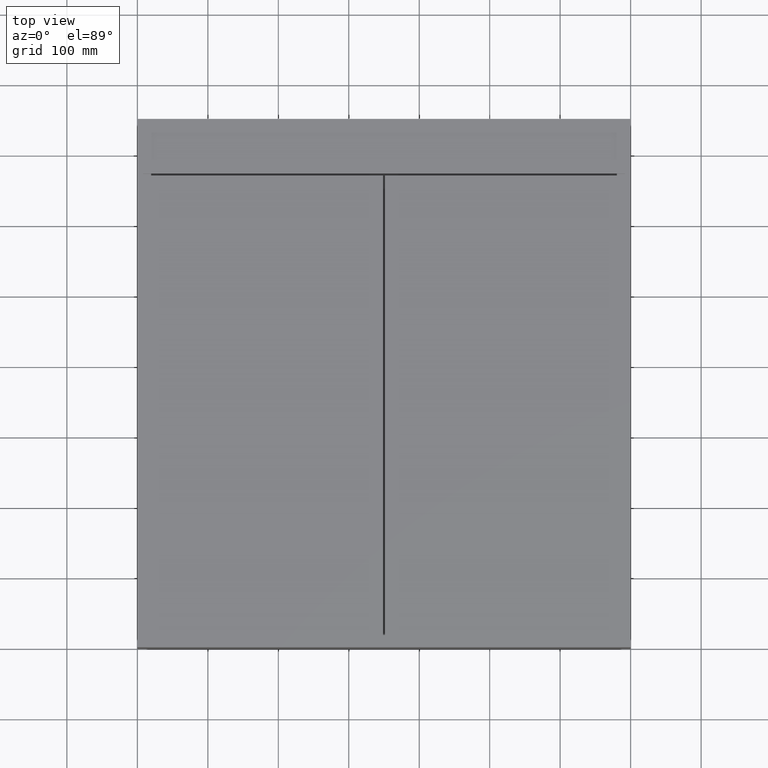
[diagram: clean part render]
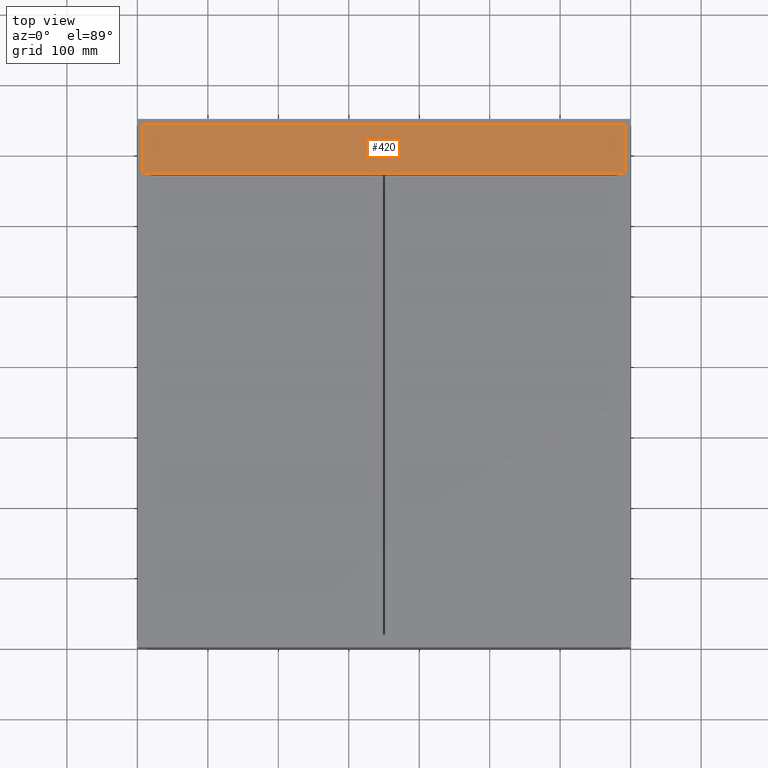
[diagram: same view with one face highlighted and labeled with its STEP entity id]
A machine part, top view. The second image highlights one B-rep face of the part: STEP entity #420.
In plain terms, the highlighted planar face has unit normal (-0, 0, -1).
Its self-contained STEP definition (entity closure, byte-faithful):
#420 = ADVANCED_FACE ( 'NONE', ( #770 ), #4380, .F. ) ;
#487 = VERTEX_POINT ( 'NONE', #10830 ) ;
#637 = EDGE_LOOP ( 'NONE', ( #5780, #8802, #2681, #4771 ) ) ;
#770 = FACE_OUTER_BOUND ( 'NONE', #637, .T. ) ;
#824 = CARTESIAN_POINT ( 'NONE',  ( 692.0000000000000000, 742.0000000000000000, -0.9999999999999974465 ) ) ;
#951 = DIRECTION ( 'NONE',  ( 0.0000000000000000000, -1.000000000000000000, -1.239086427002825381E-16 ) ) ;
#1298 = VECTOR ( 'NONE', #2766, 1000.000000000000000 ) ;
#1604 = VECTOR ( 'NONE', #10904, 1000.000000000000000 ) ;
#2001 = CARTESIAN_POINT ( 'NONE',  ( 8.000000000000007105, 671.9999000000001388, -0.9999999999999280575 ) ) ;
#2681 = ORIENTED_EDGE ( 'NONE', *, *, #6085, .T. ) ;
#2766 = DIRECTION ( 'NONE',  ( -1.000000000000000000, 5.777789833161705849E-34, 1.153591111524576471E-16 ) ) ;
#2873 = DIRECTION ( 'NONE',  ( 0.0000000000000000000, -1.000000000000000000, -1.239086427002825381E-16 ) ) ;
#2941 = VECTOR ( 'NONE', #951, 1000.000000000000000 ) ;
#3496 = DIRECTION ( 'NONE',  ( 0.0000000000000000000, 1.000000000000000000, 1.239086427002825381E-16 ) ) ;
#3680 = LINE ( 'NONE', #7305, #1604 ) ;
#3689 = VERTEX_POINT ( 'NONE', #824 ) ;
#3816 = VERTEX_POINT ( 'NONE', #2001 ) ;
#4170 = AXIS2_PLACEMENT_3D ( 'NONE', #8008, #11599, #3496 ) ;
#4380 = PLANE ( 'NONE',  #4170 ) ;
#4771 = ORIENTED_EDGE ( 'NONE', *, *, #8525, .F. ) ;
#5460 = LINE ( 'NONE', #9069, #2941 ) ;
#5567 = EDGE_CURVE ( 'NONE', #3689, #7563, #5460, .T. ) ;
#5780 = ORIENTED_EDGE ( 'NONE', *, *, #5567, .F. ) ;
#6085 = EDGE_CURVE ( 'NONE', #487, #3816, #7394, .T. ) ;
#7276 = LINE ( 'NONE', #10877, #1298 ) ;
#7305 = CARTESIAN_POINT ( 'NONE',  ( 771.6493188923168418, 742.0000000000000000, -1.000000000000007772 ) ) ;
#7394 = LINE ( 'NONE', #10989, #10514 ) ;
#7563 = VERTEX_POINT ( 'NONE', #7799 ) ;
#7799 = CARTESIAN_POINT ( 'NONE',  ( 692.0000000000000000, 671.9999000000001388, -1.000000000000007772 ) ) ;
#8008 = CARTESIAN_POINT ( 'NONE',  ( 771.6493188923168418, 742.0000000000000000, -1.000000000000007772 ) ) ;
#8525 = EDGE_CURVE ( 'NONE', #7563, #3816, #7276, .T. ) ;
#8802 = ORIENTED_EDGE ( 'NONE', *, *, #10919, .T. ) ;
#9069 = CARTESIAN_POINT ( 'NONE',  ( 692.0000000000000000, 742.0000000000000000, -0.9999999999999974465 ) ) ;
#10514 = VECTOR ( 'NONE', #2873, 1000.000000000000000 ) ;
#10830 = CARTESIAN_POINT ( 'NONE',  ( 8.000000000000007105, 742.0000000000000000, -0.9999999999999210631 ) ) ;
#10877 = CARTESIAN_POINT ( 'NONE',  ( 771.6493188923168418, 671.9999000000001388, -1.000000000000018208 ) ) ;
#10904 = DIRECTION ( 'NONE',  ( -1.000000000000000000, 5.777789833161705849E-34, 1.153591111524576471E-16 ) ) ;
#10919 = EDGE_CURVE ( 'NONE', #3689, #487, #3680, .T. ) ;
#10989 = CARTESIAN_POINT ( 'NONE',  ( 8.000000000000007105, 742.0000000000000000, -0.9999999999999210631 ) ) ;
#11599 = DIRECTION ( 'NONE',  ( -1.153591111524576471E-16, 1.239086427002825381E-16, -1.000000000000000000 ) ) ;